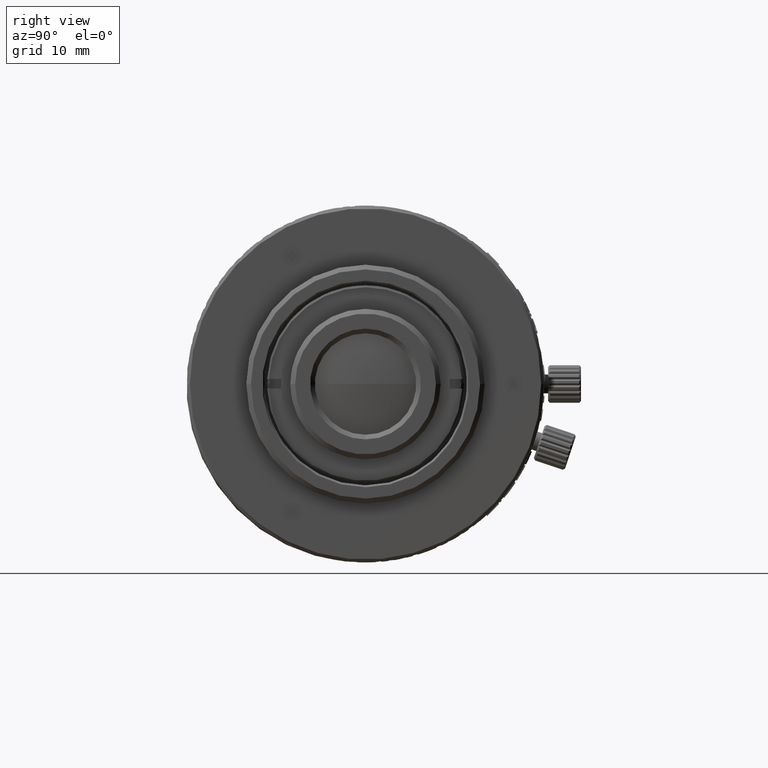
[diagram: clean part render]
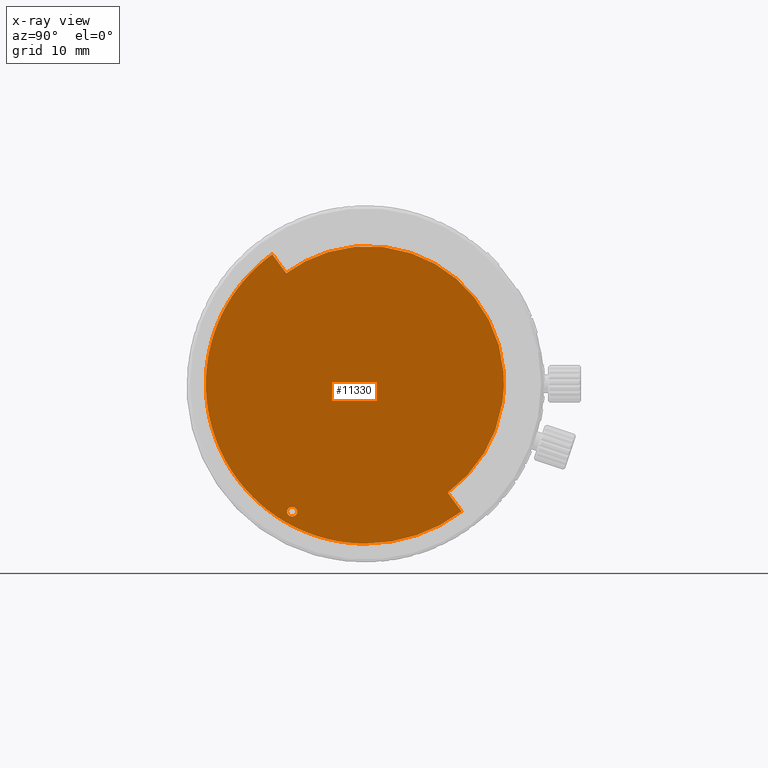
[diagram: x-ray — body ghosted, one internal face saturated and labeled with its STEP entity id]
A machine part, right view, then the same camera in x-ray: the body is ghosted and one INTERNAL B-rep face — a face not visible from any outside direction — is saturated and labeled: STEP entity #11330.
In plain terms, the highlighted planar face has unit normal (-1, 0, 0).
Its self-contained STEP definition (entity closure, byte-faithful):
#132 = CARTESIAN_POINT ( 'NONE',  ( 25.23651411429150571, 11.53308139233038609, -32.56078893021395260 ) ) ;
#343 = CARTESIAN_POINT ( 'NONE',  ( 25.23650968451000409, 29.02931353002406567, -32.47800147177240149 ) ) ;
#677 = DIRECTION ( 'NONE',  ( 0.000000000000000000, -0.5927672295465626906, 0.8053738334312163794 ) ) ;
#685 = AXIS2_PLACEMENT_3D ( 'NONE', #21051, #30032, #46540 ) ;
#2080 = ORIENTED_EDGE ( 'NONE', *, *, #10672, .T. ) ;
#2345 = CARTESIAN_POINT ( 'NONE',  ( 25.23650968450666099, 10.89638530125976068, -32.99371082809624767 ) ) ;
#2971 = CARTESIAN_POINT ( 'NONE',  ( 25.23650968450386145, 27.54961137003294169, -30.46757757934509669 ) ) ;
#3850 = CARTESIAN_POINT ( 'NONE',  ( 25.23650968451000409, 32.54472646995904483, -4.720525978495678565 ) ) ;
#3908 = CARTESIAN_POINT ( 'NONE',  ( 25.23650968451000054, 8.949939613981140241, -5.045371326661746814 ) ) ;
#4479 = FACE_OUTER_BOUND ( 'NONE', #52137, .T. ) ;
#4514 =( BOUNDED_CURVE ( )  B_SPLINE_CURVE ( 3, ( #33914, #3908, #21021, #12307 ),
 .UNSPECIFIED., .F., .F. ) 
 B_SPLINE_CURVE_WITH_KNOTS ( ( 4, 4 ),
 ( 1.569173074373621413, 1.577090753246279009 ),
 .UNSPECIFIED. ) 
 CURVE ( )  GEOMETRIC_REPRESENTATION_ITEM ( )  RATIONAL_B_SPLINE_CURVE ( ( 1.000000000000000000, 0.9999947758702619760, 0.9999947758702619760, 1.000000000000000000 ) ) 
 REPRESENTATION_ITEM ( '' )  );
#4848 = DIRECTION ( 'NONE',  ( 0.000000000000000000, 0.000000000000000000, 1.000000000000000000 ) ) ;
#4964 = ORIENTED_EDGE ( 'NONE', *, *, #16677, .F. ) ;
#5175 = VERTEX_POINT ( 'NONE', #23666 ) ;
#5216 = VERTEX_POINT ( 'NONE', #11021 ) ;
#5925 = CARTESIAN_POINT ( 'NONE',  ( 25.23650968451000409, 33.50419186675703997, -17.64893523509262252 ) ) ;
#6587 = CARTESIAN_POINT ( 'NONE',  ( 25.23650968450331789, 10.95004786563999843, -31.99659883941325589 ) ) ;
#8812 = ORIENTED_EDGE ( 'NONE', *, *, #42772, .T. ) ;
#8920 = EDGE_CURVE ( 'NONE', #24207, #5175, #33189, .T. ) ;
#8926 = CIRCLE ( 'NONE', #30440, 17.00000000000000355 ) ;
#9662 = CARTESIAN_POINT ( 'NONE',  ( 25.23650968451000765, 11.53525378235890742, -32.41661132243600463 ) ) ;
#9805 = CARTESIAN_POINT ( 'NONE',  ( 25.23650968450998988, 11.03714548713807808, -33.02458284016666568 ) ) ;
#10672 = EDGE_CURVE ( 'NONE', #5175, #48871, #44333, .T. ) ;
#10747 = DIRECTION ( 'NONE',  ( 0.000000000000000000, 1.836766033387207001E-15, 1.000000000000000000 ) ) ;
#10895 = CARTESIAN_POINT ( 'NONE',  ( 25.23650968451000409, 15.64614387805247198, -14.29471786766078267 ) ) ;
#11021 = CARTESIAN_POINT ( 'NONE',  ( 25.23650968451044108, 18.80004786564000341, -35.90000000000000568 ) ) ;
#11330 = ADVANCED_FACE ( 'NONE', ( #49710, #4479 ), #38418, .F. ) ;
#12258 = CARTESIAN_POINT ( 'NONE',  ( 25.23650968451000409, 33.50419186675703997, -17.64893523509262252 ) ) ;
#12307 = CARTESIAN_POINT ( 'NONE',  ( 25.23650968450341026, 8.877877307365924509, -5.098891037139567040 ) ) ;
#12491 = EDGE_CURVE ( 'NONE', #31897, #26761, #4514, .T. ) ;
#13713 = DIRECTION ( 'NONE',  ( 0.000000000000000000, 0.000000000000000000, 1.000000000000000000 ) ) ;
#14576 = CARTESIAN_POINT ( 'NONE',  ( 25.23651411429150571, 11.53308139233038609, -32.56078893021395260 ) ) ;
#15367 = LINE ( 'NONE', #10895, #27047 ) ;
#15777 = CARTESIAN_POINT ( 'NONE',  ( 25.23650968451044108, 18.80004786563999986, -18.90000000000000213 ) ) ;
#16105 = EDGE_LOOP ( 'NONE', ( #22397, #21733, #41729, #4964 ) ) ;
#16677 = EDGE_CURVE ( 'NONE', #48208, #52226, #54819, .T. ) ;
#17234 = CARTESIAN_POINT ( 'NONE',  ( 25.23650968451001830, 11.14918545798366623, -31.99969498465281248 ) ) ;
#17805 = CARTESIAN_POINT ( 'NONE',  ( 25.23651280348866166, 11.00476070079794688, -31.99961265800148169 ) ) ;
#17949 = CARTESIAN_POINT ( 'NONE',  ( 25.23651411429150571, 11.53308139233038609, -32.56078893021395260 ) ) ;
#19047 = CARTESIAN_POINT ( 'NONE',  ( 25.23650968451000765, 11.42108676060312789, -32.82988921983938013 ) ) ;
#19502 = VERTEX_POINT ( 'NONE', #14576 ) ;
#19949 = EDGE_CURVE ( 'NONE', #42930, #24207, #42742, .T. ) ;
#21021 = CARTESIAN_POINT ( 'NONE',  ( 25.23650968451000054, 8.913855508480109435, -5.072059884148794495 ) ) ;
#21051 = CARTESIAN_POINT ( 'NONE',  ( 25.23650968451000409, 18.80004786563999986, -18.90000000000000213 ) ) ;
#21733 = ORIENTED_EDGE ( 'NONE', *, *, #49113, .F. ) ;
#22298 = CARTESIAN_POINT ( 'NONE',  ( 25.23650968451000054, 11.48265344603724358, -32.27440254731455838 ) ) ;
#22397 = ORIENTED_EDGE ( 'NONE', *, *, #24454, .F. ) ;
#23666 = CARTESIAN_POINT ( 'NONE',  ( 25.23650968451000409, 33.50419186675703997, -17.64893523509262252 ) ) ;
#24207 = VERTEX_POINT ( 'NONE', #2971 ) ;
#24454 = EDGE_CURVE ( 'NONE', #19502, #48208, #52691, .T. ) ;
#25563 = DIRECTION ( 'NONE',  ( 0.000000000000000000, -1.387778780762724429E-14, 1.000000000000000000 ) ) ;
#25857 = ORIENTED_EDGE ( 'NONE', *, *, #19949, .T. ) ;
#26218 = CARTESIAN_POINT ( 'NONE',  ( 25.23650968451000409, 15.64614387805247198, -14.29471786766078267 ) ) ;
#26639 = VERTEX_POINT ( 'NONE', #2345 ) ;
#26761 = VERTEX_POINT ( 'NONE', #53327 ) ;
#26938 = CARTESIAN_POINT ( 'NONE',  ( 25.23650968451001475, 11.18732105602330940, -32.99157958531966983 ) ) ;
#27047 = VECTOR ( 'NONE', #33323, 1000.000000000000000 ) ;
#27134 = AXIS2_PLACEMENT_3D ( 'NONE', #42083, #50481, #25563 ) ;
#27622 = ORIENTED_EDGE ( 'NONE', *, *, #12491, .F. ) ;
#28858 = CARTESIAN_POINT ( 'NONE',  ( 25.23650968451044108, 8.986129058348733878, -5.018825782957163639 ) ) ;
#29695 = EDGE_CURVE ( 'NONE', #48871, #26761, #15367, .T. ) ;
#30005 = VECTOR ( 'NONE', #677, 1000.000000000000000 ) ;
#30032 = DIRECTION ( 'NONE',  ( -1.000000000000000000, 0.000000000000000000, 0.000000000000000000 ) ) ;
#30440 = AXIS2_PLACEMENT_3D ( 'NONE', #43471, #34495, #13713 ) ;
#30625 = CARTESIAN_POINT ( 'NONE',  ( 25.23650968450386145, 27.54961137003294169, -30.46757757934509669 ) ) ;
#31155 = CARTESIAN_POINT ( 'NONE',  ( 25.23650968450666099, 10.89638530125976068, -32.99371082809624767 ) ) ;
#31221 = ORIENTED_EDGE ( 'NONE', *, *, #8920, .T. ) ;
#31897 = VERTEX_POINT ( 'NONE', #28858 ) ;
#32237 = AXIS2_PLACEMENT_3D ( 'NONE', #15777, #45501, #10747 ) ;
#33189 =( BOUNDED_CURVE ( )  B_SPLINE_CURVE ( 3, ( #30625, #52720, #51892, #5925 ),
 .UNSPECIFIED., .F., .F. ) 
 B_SPLINE_CURVE_WITH_KNOTS ( ( 4, 4 ),
 ( 4.705009289740916145, 5.722917779257488569 ),
 .UNSPECIFIED. ) 
 CURVE ( )  GEOMETRIC_REPRESENTATION_ITEM ( )  RATIONAL_B_SPLINE_CURVE ( ( 1.000000000000000000, 0.9155030294994030982, 0.9155030294994030982, 1.000000000000000000 ) ) 
 REPRESENTATION_ITEM ( '' )  );
#33323 = DIRECTION ( 'NONE',  ( 0.000000000000000000, -0.5927672295465626906, 0.8053738334312163794 ) ) ;
#33914 = CARTESIAN_POINT ( 'NONE',  ( 25.23650968451044108, 8.986129058348733878, -5.018825782957163639 ) ) ;
#34362 = CARTESIAN_POINT ( 'NONE',  ( 25.23651280348866166, 11.00476070079794688, -31.99961265800148169 ) ) ;
#34495 = DIRECTION ( 'NONE',  ( 1.000000000000000000, 0.000000000000000000, 0.000000000000000000 ) ) ;
#34833 = CARTESIAN_POINT ( 'NONE',  ( 25.23650968450331789, 10.95004786563999843, -32.49659883942000249 ) ) ;
#35613 = CARTESIAN_POINT ( 'NONE',  ( 25.23650968451001120, 11.50403121149131280, -32.70172281797731273 ) ) ;
#38217 = B_SPLINE_CURVE_WITH_KNOTS ( 'NONE', 3,
 ( #31155, #9805, #26938, #19047, #35613, #17949 ),
 .UNSPECIFIED., .F., .F.,
 ( 4, 2, 4 ),
 ( 0.000000000000000000, 0.0004261675766041988773, 0.0008523351532083977547 ),
 .UNSPECIFIED. ) ;
#38418 = PLANE ( 'NONE',  #685 ) ;
#38468 = AXIS2_PLACEMENT_3D ( 'NONE', #34833, #39592, #4848 ) ;
#39592 = DIRECTION ( 'NONE',  ( 1.000000000000000000, -0.000000000000000000, -0.000000000000000000 ) ) ;
#41550 = CARTESIAN_POINT ( 'NONE',  ( 25.23650968450386145, 10.35982980012964028, -7.112372384570048389 ) ) ;
#41729 = ORIENTED_EDGE ( 'NONE', *, *, #43018, .F. ) ;
#42083 = CARTESIAN_POINT ( 'NONE',  ( 25.23650968450331789, 10.95004786563999843, -32.49659883942000249 ) ) ;
#42261 = CARTESIAN_POINT ( 'NONE',  ( 25.23650968451000409, 20.74609122126589611, 0.6508496286766310979 ) ) ;
#42742 = LINE ( 'NONE', #26218, #30005 ) ;
#42772 = EDGE_CURVE ( 'NONE', #5216, #42930, #45608, .T. ) ;
#42930 = VERTEX_POINT ( 'NONE', #343 ) ;
#43018 = EDGE_CURVE ( 'NONE', #52226, #26639, #50961, .T. ) ;
#43179 = EDGE_CURVE ( 'NONE', #31897, #5216, #8926, .T. ) ;
#43471 = CARTESIAN_POINT ( 'NONE',  ( 25.23650968451044108, 18.80004786563999986, -18.90000000000000213 ) ) ;
#43538 = ORIENTED_EDGE ( 'NONE', *, *, #43179, .T. ) ;
#44333 =( BOUNDED_CURVE ( )  B_SPLINE_CURVE ( 3, ( #12258, #3850, #42261, #46740 ),
 .UNSPECIFIED., .F., .F. ) 
 B_SPLINE_CURVE_WITH_KNOTS ( ( 4, 4 ),
 ( 5.722917779257488569, 7.861361324618260760 ),
 .UNSPECIFIED. ) 
 CURVE ( )  GEOMETRIC_REPRESENTATION_ITEM ( )  RATIONAL_B_SPLINE_CURVE ( ( 1.000000000000000000, 0.6538711633107718857, 0.6538711633107718857, 1.000000000000000000 ) ) 
 REPRESENTATION_ITEM ( '' )  );
#45501 = DIRECTION ( 'NONE',  ( 1.000000000000000000, 0.000000000000000000, 0.000000000000000000 ) ) ;
#45608 = CIRCLE ( 'NONE', #32237, 17.00000000000000355 ) ;
#45768 = ORIENTED_EDGE ( 'NONE', *, *, #29695, .T. ) ;
#46540 = DIRECTION ( 'NONE',  ( 0.000000000000000000, 0.000000000000000000, 1.000000000000000000 ) ) ;
#46740 = CARTESIAN_POINT ( 'NONE',  ( 25.23650968450386145, 10.35982980012964028, -7.112372384570048389 ) ) ;
#47243 = CARTESIAN_POINT ( 'NONE',  ( 25.23650968451000409, 11.28893854944605124, -32.06406710951873151 ) ) ;
#48208 = VERTEX_POINT ( 'NONE', #17805 ) ;
#48871 = VERTEX_POINT ( 'NONE', #41550 ) ;
#49113 = EDGE_CURVE ( 'NONE', #26639, #19502, #38217, .T. ) ;
#49710 = FACE_BOUND ( 'NONE', #16105, .T. ) ;
#50481 = DIRECTION ( 'NONE',  ( 1.000000000000000000, -0.000000000000000000, -0.000000000000000000 ) ) ;
#50961 = CIRCLE ( 'NONE', #38468, 0.5000000000067450490 ) ;
#51892 = CARTESIAN_POINT ( 'NONE',  ( 25.23650968451000409, 33.88500559718347205, -22.78024666530649966 ) ) ;
#52137 = EDGE_LOOP ( 'NONE', ( #43538, #8812, #25857, #31221, #2080, #45768, #27622 ) ) ;
#52226 = VERTEX_POINT ( 'NONE', #6587 ) ;
#52691 = B_SPLINE_CURVE_WITH_KNOTS ( 'NONE', 3,
 ( #132, #9662, #22298, #47243, #17234, #34362 ),
 .UNSPECIFIED., .F., .F.,
 ( 4, 2, 4 ),
 ( 0.000000000000000000, 0.0004263910942234551871, 0.0008527821884469103742 ),
 .UNSPECIFIED. ) ;
#52720 = CARTESIAN_POINT ( 'NONE',  ( 25.23650968451000409, 31.71695142191763139, -27.44749586463891688 ) ) ;
#53327 = CARTESIAN_POINT ( 'NONE',  ( 25.23650968450341026, 8.877877307365924509, -5.098891037139567040 ) ) ;
#54819 = CIRCLE ( 'NONE', #27134, 0.5000000000067450490 ) ;